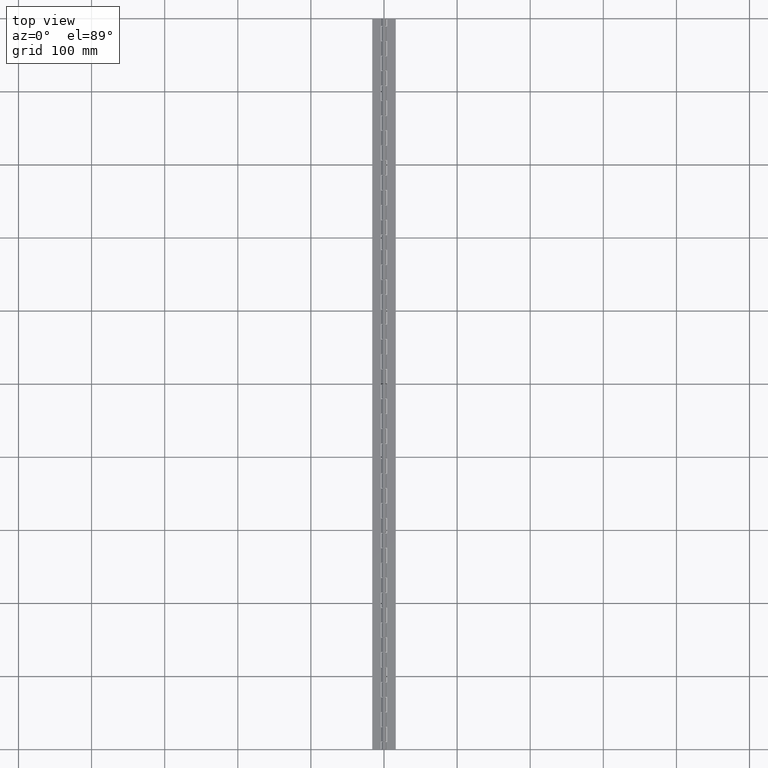
[diagram: clean part render]
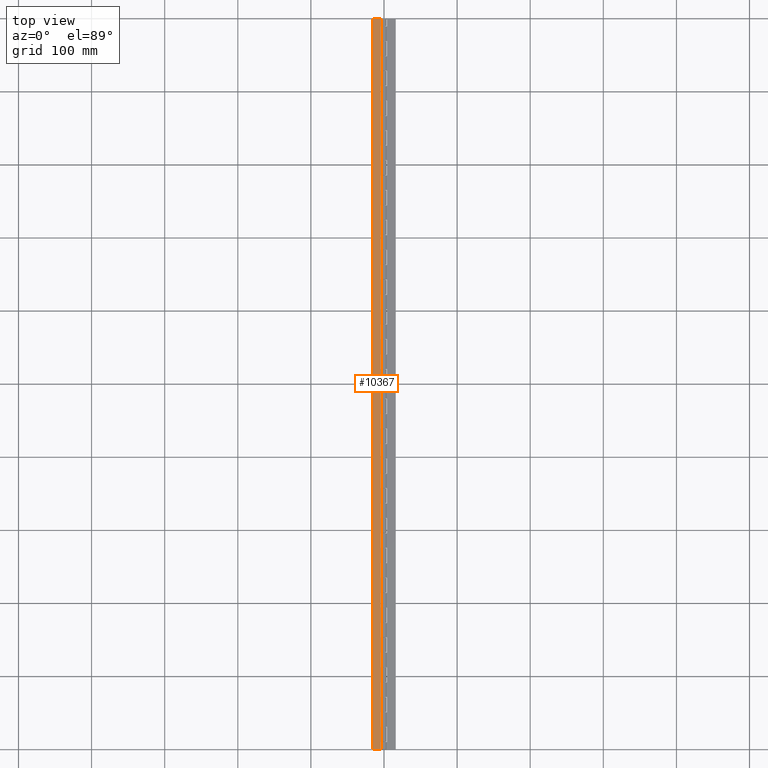
[diagram: same view with one face highlighted and labeled with its STEP entity id]
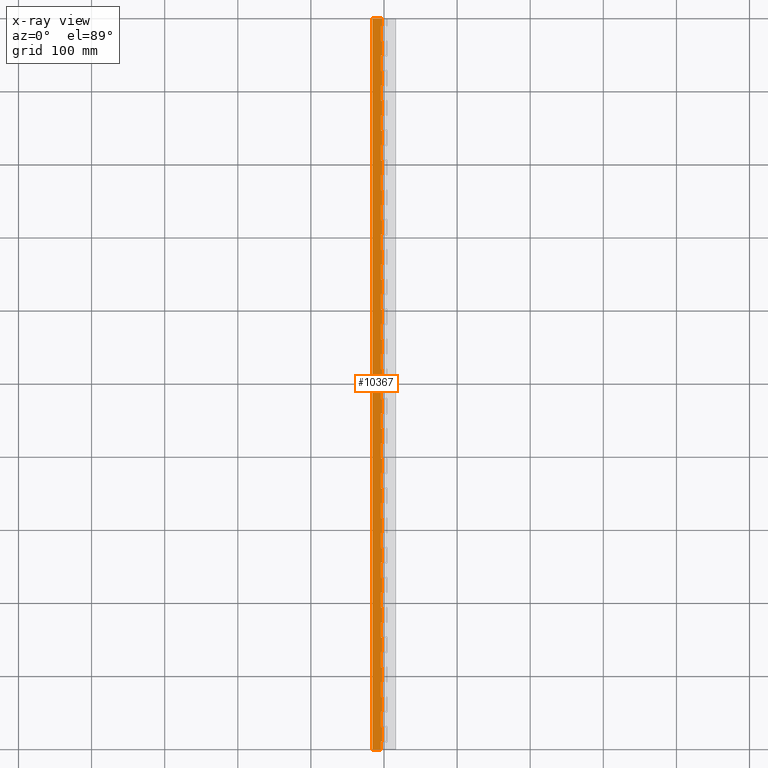
[diagram: x-ray of the same camera — body ghosted, the highlighted face saturated]
A machine part, top view. The second image highlights one B-rep face of the part: STEP entity #10367.
The next image is the same camera in x-ray: the body ghosted, the highlighted face saturated — about 0% of this face is hidden behind the body in this view.
In plain terms, the highlighted planar face has unit normal (0, 0, -1).
Its self-contained STEP definition (entity closure, byte-faithful):
#603 = VERTEX_POINT ( 'NONE', #3274 ) ;
#1460 = VERTEX_POINT ( 'NONE', #4622 ) ;
#2420 = ORIENTED_EDGE ( 'NONE', *, *, #9600, .T. ) ;
#2674 = VERTEX_POINT ( 'NONE', #6313 ) ;
#3274 = CARTESIAN_POINT ( 'NONE',  ( -2.872281323270664500, -40.60000000000108100, -1.999999999997704900 ) ) ;
#3474 = EDGE_CURVE ( 'NONE', #2674, #5263, #6295, .T. ) ;
#4622 = CARTESIAN_POINT ( 'NONE',  ( -2.872281323270664500, -163.0000000000012500, -1.999999999997704900 ) ) ;
#5263 = VERTEX_POINT ( 'NONE', #6374 ) ;
#5289 = VECTOR ( 'NONE', #5542, 1000.000000000000000 ) ;
#5367 = VERTEX_POINT ( 'NONE', #6363 ) ;
#5542 = DIRECTION ( 'NONE',  ( 2.085004177856735100E-016, 1.000000000000000000, 0.0000000000000000000 ) ) ;
#5788 = DIRECTION ( 'NONE',  ( 1.251002506714041300E-016, 1.000000000000000000, 0.0000000000000000000 ) ) ;
#5793 = VECTOR ( 'NONE', #5788, 1000.000000000000000 ) ;
#6053 = VECTOR ( 'NONE', #6323, 1000.000000000000000 ) ;
#6089 = EDGE_CURVE ( 'NONE', #6145, #10767, #6416, .T. ) ;
#6145 = VERTEX_POINT ( 'NONE', #6407 ) ;
#6289 = DIRECTION ( 'NONE',  ( 0.0000000000000000000, -1.000000000000000000, 0.0000000000000000000 ) ) ;
#6290 = VECTOR ( 'NONE', #6289, 1000.000000000000000 ) ;
#6291 = CARTESIAN_POINT ( 'NONE',  ( -2.872281323270664500, 500.0000000000000000, -1.999999999997704900 ) ) ;
#6295 = LINE ( 'NONE', #6291, #6290 ) ;
#6313 = CARTESIAN_POINT ( 'NONE',  ( -2.872281323270664500, -61.40000000000112100, -1.999999999997704900 ) ) ;
#6323 = DIRECTION ( 'NONE',  ( 0.0000000000000000000, 1.000000000000000000, 0.0000000000000000000 ) ) ;
#6363 = CARTESIAN_POINT ( 'NONE',  ( -2.872281323270664500, -20.60000000000106000, -1.999999999997704900 ) ) ;
#6374 = CARTESIAN_POINT ( 'NONE',  ( -2.872281323270664500, -81.40000000000114300, -1.999999999997704900 ) ) ;
#6407 = CARTESIAN_POINT ( 'NONE',  ( -2.872281323270664500, -102.2000000000011800, -1.999999999997704900 ) ) ;
#6413 = DIRECTION ( 'NONE',  ( 0.0000000000000000000, -1.000000000000000000, 0.0000000000000000000 ) ) ;
#6414 = VECTOR ( 'NONE', #6413, 1000.000000000000000 ) ;
#6415 = CARTESIAN_POINT ( 'NONE',  ( -2.872281323270664500, 500.0000000000000000, -1.999999999997704900 ) ) ;
#6416 = LINE ( 'NONE', #6415, #6414 ) ;
#6486 = CARTESIAN_POINT ( 'NONE',  ( -4.000000000001147500, 0.1999999999989787700, -1.999999999997704900 ) ) ;
#6487 = DIRECTION ( 'NONE',  ( 1.000000000000000000, 0.0000000000000000000, 0.0000000000000000000 ) ) ;
#6488 = VECTOR ( 'NONE', #6487, 1000.000000000000000 ) ;
#6489 = CARTESIAN_POINT ( 'NONE',  ( -2.872281323270664500, -40.60000000000108100, -1.999999999997704900 ) ) ;
#6490 = LINE ( 'NONE', #6489, #6488 ) ;
#6491 = CARTESIAN_POINT ( 'NONE',  ( -4.000000000001136900, 81.79999999999910200, -1.999999999997704900 ) ) ;
#6493 = CARTESIAN_POINT ( 'NONE',  ( -4.000000000001149300, -20.60000000000106000, -1.999999999997704900 ) ) ;
#6494 = DIRECTION ( 'NONE',  ( 1.251002506714041300E-016, 1.000000000000000000, 0.0000000000000000000 ) ) ;
#6495 = VECTOR ( 'NONE', #6494, 1000.000000000000000 ) ;
#6496 = CARTESIAN_POINT ( 'NONE',  ( -4.000000000001085400, 500.0000000000000000, -1.999999999997704900 ) ) ;
#6497 = LINE ( 'NONE', #6496, #6495 ) ;
#6498 = DIRECTION ( 'NONE',  ( 8.340016711426940500E-017, 1.000000000000000000, 0.0000000000000000000 ) ) ;
#6499 = VECTOR ( 'NONE', #6498, 1000.000000000000000 ) ;
#6500 = CARTESIAN_POINT ( 'NONE',  ( -4.000000000001106700, 500.0000000000000000, -1.999999999997704900 ) ) ;
#6501 = LINE ( 'NONE', #6500, #6499 ) ;
#6502 = DIRECTION ( 'NONE',  ( 1.000000000000000000, 0.0000000000000000000, 0.0000000000000000000 ) ) ;
#6503 = VECTOR ( 'NONE', #6502, 1000.000000000000000 ) ;
#6504 = CARTESIAN_POINT ( 'NONE',  ( -2.872281323270664500, 0.1999999999989787700, -1.999999999997704900 ) ) ;
#6505 = LINE ( 'NONE', #6504, #6503 ) ;
#6519 = CARTESIAN_POINT ( 'NONE',  ( -4.000000000001145800, 20.19999999999899700, -1.999999999997704900 ) ) ;
#6520 = CARTESIAN_POINT ( 'NONE',  ( -4.000000000001132400, 122.5999999999991600, -1.999999999997704900 ) ) ;
#6521 = DIRECTION ( 'NONE',  ( 1.000000000000000000, 0.0000000000000000000, 0.0000000000000000000 ) ) ;
#6522 = VECTOR ( 'NONE', #6521, 1000.000000000000000 ) ;
#6523 = CARTESIAN_POINT ( 'NONE',  ( -2.872281323270664500, 122.5999999999991600, -1.999999999997704900 ) ) ;
#6524 = LINE ( 'NONE', #6523, #6522 ) ;
#6525 = DIRECTION ( 'NONE',  ( -1.000000000000000000, 0.0000000000000000000, 0.0000000000000000000 ) ) ;
#6527 = VECTOR ( 'NONE', #6525, 1000.000000000000000 ) ;
#6528 = CARTESIAN_POINT ( 'NONE',  ( -2.872281323270664500, -20.60000000000106000, -1.999999999997704900 ) ) ;
#6529 = LINE ( 'NONE', #6528, #6527 ) ;
#6530 = CARTESIAN_POINT ( 'NONE',  ( -4.000000000001139500, 60.99999999999905500, -1.999999999997704900 ) ) ;
#6531 = DIRECTION ( 'NONE',  ( -1.000000000000000000, 0.0000000000000000000, 0.0000000000000000000 ) ) ;
#6532 = VECTOR ( 'NONE', #6531, 1000.000000000000000 ) ;
#6533 = CARTESIAN_POINT ( 'NONE',  ( -2.872281323270664500, 60.99999999999905500, -1.999999999997704900 ) ) ;
#6534 = LINE ( 'NONE', #6533, #6532 ) ;
#6535 = CARTESIAN_POINT ( 'NONE',  ( -4.000000000001142200, 40.99999999999903400, -1.999999999997704900 ) ) ;
#6536 = DIRECTION ( 'NONE',  ( 1.000000000000000000, 0.0000000000000000000, 0.0000000000000000000 ) ) ;
#6537 = VECTOR ( 'NONE', #6536, 1000.000000000000000 ) ;
#6538 = CARTESIAN_POINT ( 'NONE',  ( -2.872281323270664500, 40.99999999999903400, -1.999999999997704900 ) ) ;
#6539 = LINE ( 'NONE', #6538, #6537 ) ;
#6540 = DIRECTION ( 'NONE',  ( 1.668003342285388100E-016, 1.000000000000000000, 0.0000000000000000000 ) ) ;
#6541 = VECTOR ( 'NONE', #6540, 1000.000000000000000 ) ;
#6542 = CARTESIAN_POINT ( 'NONE',  ( -4.000000000001065800, 500.0000000000000000, -1.999999999997704900 ) ) ;
#6543 = LINE ( 'NONE', #6542, #6541 ) ;
#6548 = DIRECTION ( 'NONE',  ( 8.340016711426940500E-017, 1.000000000000000000, 0.0000000000000000000 ) ) ;
#6549 = VECTOR ( 'NONE', #6548, 1000.000000000000000 ) ;
#6550 = CARTESIAN_POINT ( 'NONE',  ( -4.000000000001111100, 500.0000000000000000, -1.999999999997704900 ) ) ;
#6551 = LINE ( 'NONE', #6550, #6549 ) ;
#6552 = CARTESIAN_POINT ( 'NONE',  ( -4.000000000001159100, -102.2000000000011800, -1.999999999997704900 ) ) ;
#6553 = DIRECTION ( 'NONE',  ( 8.340016711426940500E-017, 1.000000000000000000, 0.0000000000000000000 ) ) ;
#6554 = VECTOR ( 'NONE', #6553, 1000.000000000000000 ) ;
#6555 = CARTESIAN_POINT ( 'NONE',  ( -4.000000000001108400, 500.0000000000000000, -1.999999999997704900 ) ) ;
#6556 = LINE ( 'NONE', #6555, #6554 ) ;
#6557 = CARTESIAN_POINT ( 'NONE',  ( -4.000000000001152900, -40.60000000000108100, -1.999999999997704900 ) ) ;
#6558 = DIRECTION ( 'NONE',  ( -1.000000000000000000, 0.0000000000000000000, 0.0000000000000000000 ) ) ;
#6559 = VECTOR ( 'NONE', #6558, 1000.000000000000000 ) ;
#6560 = CARTESIAN_POINT ( 'NONE',  ( -2.872281323270664500, -102.2000000000011800, -1.999999999997704900 ) ) ;
#6561 = LINE ( 'NONE', #6560, #6559 ) ;
#6562 = CARTESIAN_POINT ( 'NONE',  ( -4.000000000001154600, -61.40000000000112100, -1.999999999997704900 ) ) ;
#6563 = DIRECTION ( 'NONE',  ( -1.000000000000000000, 0.0000000000000000000, 0.0000000000000000000 ) ) ;
#6564 = VECTOR ( 'NONE', #6563, 1000.000000000000000 ) ;
#6565 = CARTESIAN_POINT ( 'NONE',  ( -2.872281323270664500, -61.40000000000112100, -1.999999999997704900 ) ) ;
#6566 = LINE ( 'NONE', #6565, #6564 ) ;
#6567 = CARTESIAN_POINT ( 'NONE',  ( -4.000000000001157300, -81.40000000000114300, -1.999999999997704900 ) ) ;
#6568 = DIRECTION ( 'NONE',  ( 1.000000000000000000, 0.0000000000000000000, 0.0000000000000000000 ) ) ;
#6569 = VECTOR ( 'NONE', #6568, 1000.000000000000000 ) ;
#6570 = CARTESIAN_POINT ( 'NONE',  ( -2.872281323270664500, -163.0000000000012500, -1.999999999997704900 ) ) ;
#6571 = LINE ( 'NONE', #6570, #6569 ) ;
#6572 = DIRECTION ( 'NONE',  ( 1.251002506714041300E-016, 1.000000000000000000, 0.0000000000000000000 ) ) ;
#6573 = VECTOR ( 'NONE', #6572, 1000.000000000000000 ) ;
#6574 = CARTESIAN_POINT ( 'NONE',  ( -4.000000000001085400, 500.0000000000000000, -1.999999999997704900 ) ) ;
#6575 = LINE ( 'NONE', #6574, #6573 ) ;
#6580 = CARTESIAN_POINT ( 'NONE',  ( -4.000000000001059600, 500.0000000000000000, -1.999999999997704900 ) ) ;
#6581 = LINE ( 'NONE', #6580, #5289 ) ;
#6584 = DIRECTION ( 'NONE',  ( -1.000000000000000000, 0.0000000000000000000, 0.0000000000000000000 ) ) ;
#6585 = VECTOR ( 'NONE', #6584, 1000.000000000000000 ) ;
#6586 = CARTESIAN_POINT ( 'NONE',  ( -2.872281323270664500, 101.7999999999991200, -1.999999999997704900 ) ) ;
#6587 = LINE ( 'NONE', #6586, #6585 ) ;
#6588 = CARTESIAN_POINT ( 'NONE',  ( -4.000000000001121800, 204.1999999999992800, -1.999999999997704900 ) ) ;
#6589 = CARTESIAN_POINT ( 'NONE',  ( -4.000000000001134200, 101.7999999999991200, -1.999999999997704900 ) ) ;
#6590 = DIRECTION ( 'NONE',  ( -1.000000000000000000, 0.0000000000000000000, 0.0000000000000000000 ) ) ;
#6591 = VECTOR ( 'NONE', #6590, 1000.000000000000000 ) ;
#6592 = CARTESIAN_POINT ( 'NONE',  ( -2.872281323270664500, -143.0000000000012500, -1.999999999997704900 ) ) ;
#6593 = LINE ( 'NONE', #6592, #6591 ) ;
#6595 = DIRECTION ( 'NONE',  ( -1.000000000000000000, 0.0000000000000000000, 0.0000000000000000000 ) ) ;
#6596 = VECTOR ( 'NONE', #6595, 1000.000000000000000 ) ;
#6597 = CARTESIAN_POINT ( 'NONE',  ( -2.872281323270664500, 20.19999999999899700, -1.999999999997704900 ) ) ;
#6598 = LINE ( 'NONE', #6597, #6596 ) ;
#6600 = CARTESIAN_POINT ( 'NONE',  ( -4.000000000001164400, -143.0000000000012500, -1.999999999997704900 ) ) ;
#6606 = CARTESIAN_POINT ( 'NONE',  ( -4.000000000001162600, -122.2000000000012000, -1.999999999997704900 ) ) ;
#6607 = DIRECTION ( 'NONE',  ( 1.000000000000000000, 0.0000000000000000000, 0.0000000000000000000 ) ) ;
#6608 = VECTOR ( 'NONE', #6607, 1000.000000000000000 ) ;
#6609 = CARTESIAN_POINT ( 'NONE',  ( -2.872281323270664500, -81.40000000000114300, -1.999999999997704900 ) ) ;
#6611 = LINE ( 'NONE', #6609, #6608 ) ;
#6612 = DIRECTION ( 'NONE',  ( 8.340016711426940500E-017, 1.000000000000000000, 0.0000000000000000000 ) ) ;
#6613 = VECTOR ( 'NONE', #6612, 1000.000000000000000 ) ;
#6614 = CARTESIAN_POINT ( 'NONE',  ( -4.000000000001108400, 500.0000000000000000, -1.999999999997704900 ) ) ;
#6615 = LINE ( 'NONE', #6614, #6613 ) ;
#6616 = DIRECTION ( 'NONE',  ( 1.000000000000000000, 0.0000000000000000000, 0.0000000000000000000 ) ) ;
#6617 = VECTOR ( 'NONE', #6616, 1000.000000000000000 ) ;
#6618 = CARTESIAN_POINT ( 'NONE',  ( -2.872281323270664500, 244.9999999999993200, -1.999999999997704900 ) ) ;
#6619 = LINE ( 'NONE', #6618, #6617 ) ;
#6620 = CARTESIAN_POINT ( 'NONE',  ( -4.000000000001118200, 244.9999999999993200, -1.999999999997704900 ) ) ;
#6621 = DIRECTION ( 'NONE',  ( 1.251002506714041300E-016, 1.000000000000000000, 0.0000000000000000000 ) ) ;
#6622 = VECTOR ( 'NONE', #6621, 1000.000000000000000 ) ;
#6623 = CARTESIAN_POINT ( 'NONE',  ( -4.000000000001087100, 500.0000000000000000, -1.999999999997704900 ) ) ;
#6624 = LINE ( 'NONE', #6623, #6622 ) ;
#6625 = CARTESIAN_POINT ( 'NONE',  ( -4.000000000001120900, 224.1999999999992800, -1.999999999997704900 ) ) ;
#6626 = DIRECTION ( 'NONE',  ( 1.000000000000000000, 0.0000000000000000000, 0.0000000000000000000 ) ) ;
#6627 = VECTOR ( 'NONE', #6626, 1000.000000000000000 ) ;
#6628 = CARTESIAN_POINT ( 'NONE',  ( -2.872281323270664500, 285.7999999999993900, -1.999999999997704900 ) ) ;
#6629 = LINE ( 'NONE', #6628, #6627 ) ;
#6630 = DIRECTION ( 'NONE',  ( 1.000000000000000000, 0.0000000000000000000, 0.0000000000000000000 ) ) ;
#6631 = VECTOR ( 'NONE', #6630, 1000.000000000000000 ) ;
#6632 = CARTESIAN_POINT ( 'NONE',  ( -2.872281323270664500, 367.3999999999995200, -1.999999999997704900 ) ) ;
#6633 = LINE ( 'NONE', #6632, #6631 ) ;
#6634 = CARTESIAN_POINT ( 'NONE',  ( -4.000000000001096900, 367.3999999999995200, -1.999999999997704900 ) ) ;
#6635 = DIRECTION ( 'NONE',  ( -1.000000000000000000, 0.0000000000000000000, 0.0000000000000000000 ) ) ;
#6636 = VECTOR ( 'NONE', #6635, 1000.000000000000000 ) ;
#6637 = CARTESIAN_POINT ( 'NONE',  ( -2.872281323270664500, 264.9999999999993700, -1.999999999997704900 ) ) ;
#6638 = LINE ( 'NONE', #6637, #6636 ) ;
#6639 = CARTESIAN_POINT ( 'NONE',  ( -4.000000000001131500, 142.5999999999991700, -1.999999999997704900 ) ) ;
#6640 = DIRECTION ( 'NONE',  ( 1.000000000000000000, 0.0000000000000000000, 0.0000000000000000000 ) ) ;
#6641 = VECTOR ( 'NONE', #6640, 1000.000000000000000 ) ;
#6642 = CARTESIAN_POINT ( 'NONE',  ( -2.872281323270664500, 81.79999999999910200, -1.999999999997704900 ) ) ;
#6643 = LINE ( 'NONE', #6642, #6641 ) ;
#6644 = CARTESIAN_POINT ( 'NONE',  ( -4.000000000001126200, 183.3999999999992400, -1.999999999997704900 ) ) ;
#6645 = DIRECTION ( 'NONE',  ( -1.000000000000000000, 0.0000000000000000000, 0.0000000000000000000 ) ) ;
#6646 = VECTOR ( 'NONE', #6645, 1000.000000000000000 ) ;
#6647 = CARTESIAN_POINT ( 'NONE',  ( -2.872281323270664500, 183.3999999999992400, -1.999999999997704900 ) ) ;
#6648 = LINE ( 'NONE', #6647, #6646 ) ;
#6649 = CARTESIAN_POINT ( 'NONE',  ( -4.000000000001114700, 264.9999999999993700, -1.999999999997704900 ) ) ;
#6650 = CARTESIAN_POINT ( 'NONE',  ( -4.000000000001105800, 305.7999999999993900, -1.999999999997704900 ) ) ;
#6651 = DIRECTION ( 'NONE',  ( 1.251002506714041300E-016, 1.000000000000000000, 0.0000000000000000000 ) ) ;
#6652 = VECTOR ( 'NONE', #6651, 1000.000000000000000 ) ;
#6653 = CARTESIAN_POINT ( 'NONE',  ( -4.000000000001082700, 500.0000000000000000, -1.999999999997704900 ) ) ;
#6654 = LINE ( 'NONE', #6653, #6652 ) ;
#6655 = CARTESIAN_POINT ( 'NONE',  ( -4.000000000001103100, 326.5999999999994500, -1.999999999997704900 ) ) ;
#6656 = DIRECTION ( 'NONE',  ( 1.668003342285388100E-016, 1.000000000000000000, 0.0000000000000000000 ) ) ;
#6657 = VECTOR ( 'NONE', #6656, 1000.000000000000000 ) ;
#6658 = CARTESIAN_POINT ( 'NONE',  ( -4.000000000001072000, 500.0000000000000000, -1.999999999997704900 ) ) ;
#6659 = LINE ( 'NONE', #6658, #6657 ) ;
#6660 = DIRECTION ( 'NONE',  ( -1.000000000000000000, 0.0000000000000000000, 0.0000000000000000000 ) ) ;
#6661 = VECTOR ( 'NONE', #6660, 1000.000000000000000 ) ;
#6662 = CARTESIAN_POINT ( 'NONE',  ( -2.872281323270664500, 346.5999999999994500, -1.999999999997704900 ) ) ;
#6663 = LINE ( 'NONE', #6662, #6661 ) ;
#6664 = DIRECTION ( 'NONE',  ( -1.000000000000000000, 0.0000000000000000000, 0.0000000000000000000 ) ) ;
#6666 = VECTOR ( 'NONE', #6664, 1000.000000000000000 ) ;
#6667 = CARTESIAN_POINT ( 'NONE',  ( -2.872281323270664500, 224.1999999999992800, -1.999999999997704900 ) ) ;
#6668 = LINE ( 'NONE', #6667, #6666 ) ;
#6669 = CARTESIAN_POINT ( 'NONE',  ( -4.000000000001128000, 163.3999999999992100, -1.999999999997704900 ) ) ;
#6670 = DIRECTION ( 'NONE',  ( 1.000000000000000000, 0.0000000000000000000, 0.0000000000000000000 ) ) ;
#6671 = VECTOR ( 'NONE', #6670, 1000.000000000000000 ) ;
#6672 = CARTESIAN_POINT ( 'NONE',  ( -2.872281323270664500, 204.1999999999992800, -1.999999999997704900 ) ) ;
#6673 = LINE ( 'NONE', #6672, #6671 ) ;
#6674 = DIRECTION ( 'NONE',  ( -1.000000000000000000, 0.0000000000000000000, 0.0000000000000000000 ) ) ;
#6675 = VECTOR ( 'NONE', #6674, 1000.000000000000000 ) ;
#6676 = CARTESIAN_POINT ( 'NONE',  ( -2.872281323270664500, 142.5999999999991700, -1.999999999997704900 ) ) ;
#6677 = LINE ( 'NONE', #6676, #6675 ) ;
#6678 = DIRECTION ( 'NONE',  ( 1.000000000000000000, 0.0000000000000000000, 0.0000000000000000000 ) ) ;
#6679 = VECTOR ( 'NONE', #6678, 1000.000000000000000 ) ;
#6680 = CARTESIAN_POINT ( 'NONE',  ( -2.872281323270664500, 326.5999999999994500, -1.999999999997704900 ) ) ;
#6681 = LINE ( 'NONE', #6680, #6679 ) ;
#6686 = DIRECTION ( 'NONE',  ( 0.0000000000000000000, 1.000000000000000000, 0.0000000000000000000 ) ) ;
#6687 = VECTOR ( 'NONE', #6686, 1000.000000000000000 ) ;
#6688 = CARTESIAN_POINT ( 'NONE',  ( -4.000000000001115600, 500.0000000000000000, -1.999999999997704900 ) ) ;
#6689 = LINE ( 'NONE', #6688, #6687 ) ;
#6690 = DIRECTION ( 'NONE',  ( 1.251002506714041300E-016, 1.000000000000000000, 0.0000000000000000000 ) ) ;
#6691 = VECTOR ( 'NONE', #6690, 1000.000000000000000 ) ;
#6692 = CARTESIAN_POINT ( 'NONE',  ( -4.000000000001080900, 500.0000000000000000, -1.999999999997704900 ) ) ;
#6693 = LINE ( 'NONE', #6692, #6691 ) ;
#6694 = CARTESIAN_POINT ( 'NONE',  ( -4.000000000001114700, 285.7999999999993900, -1.999999999997704900 ) ) ;
#6701 = CARTESIAN_POINT ( 'NONE',  ( -4.000000000001099600, 346.5999999999994500, -1.999999999997704900 ) ) ;
#6702 = DIRECTION ( 'NONE',  ( -1.000000000000000000, 0.0000000000000000000, 0.0000000000000000000 ) ) ;
#6703 = VECTOR ( 'NONE', #6702, 1000.000000000000000 ) ;
#6704 = CARTESIAN_POINT ( 'NONE',  ( -2.872281323270664500, 305.7999999999993900, -1.999999999997704900 ) ) ;
#6705 = LINE ( 'NONE', #6704, #6703 ) ;
#6706 = DIRECTION ( 'NONE',  ( 1.000000000000000000, 0.0000000000000000000, 0.0000000000000000000 ) ) ;
#6707 = VECTOR ( 'NONE', #6706, 1000.000000000000000 ) ;
#6708 = CARTESIAN_POINT ( 'NONE',  ( -2.872281323270664500, 163.3999999999992100, -1.999999999997704900 ) ) ;
#6709 = LINE ( 'NONE', #6708, #6707 ) ;
#6710 = LINE ( 'NONE', #6774, #6773 ) ;
#6715 = DIRECTION ( 'NONE',  ( -1.000000000000000000, 0.0000000000000000000, 0.0000000000000000000 ) ) ;
#6716 = VECTOR ( 'NONE', #6715, 1000.000000000000000 ) ;
#6717 = CARTESIAN_POINT ( 'NONE',  ( -2.872281323270664500, 428.1999999999995900, -1.999999999997704900 ) ) ;
#6718 = LINE ( 'NONE', #6717, #6716 ) ;
#6719 = CARTESIAN_POINT ( 'NONE',  ( -4.000000000001096900, 428.1999999999995900, -1.999999999997704900 ) ) ;
#6727 = DIRECTION ( 'NONE',  ( 0.0000000000000000000, 1.000000000000000000, 0.0000000000000000000 ) ) ;
#6728 = VECTOR ( 'NONE', #6727, 1000.000000000000000 ) ;
#6729 = CARTESIAN_POINT ( 'NONE',  ( -4.000000000001097800, 500.0000000000000000, -1.999999999997704900 ) ) ;
#6730 = LINE ( 'NONE', #6729, #6728 ) ;
#6737 = CARTESIAN_POINT ( 'NONE',  ( -4.000000000001096900, 448.9999999999996000, -1.999999999997704900 ) ) ;
#6756 = CARTESIAN_POINT ( 'NONE',  ( -4.000000000001096000, 387.3999999999995200, -1.999999999997704900 ) ) ;
#6757 = DIRECTION ( 'NONE',  ( -1.000000000000000000, 0.0000000000000000000, 0.0000000000000000000 ) ) ;
#6758 = VECTOR ( 'NONE', #6757, 1000.000000000000000 ) ;
#6759 = CARTESIAN_POINT ( 'NONE',  ( -2.872281323270664500, 387.3999999999995200, -1.999999999997704900 ) ) ;
#6760 = LINE ( 'NONE', #6759, #6758 ) ;
#6765 = CARTESIAN_POINT ( 'NONE',  ( -4.000000000001093300, 408.1999999999995900, -1.999999999997704900 ) ) ;
#6767 = DIRECTION ( 'NONE',  ( 1.668003342285388100E-016, 1.000000000000000000, 0.0000000000000000000 ) ) ;
#6768 = VECTOR ( 'NONE', #6767, 1000.000000000000000 ) ;
#6769 = CARTESIAN_POINT ( 'NONE',  ( -4.000000000001078200, 500.0000000000000000, -1.999999999997704900 ) ) ;
#6770 = LINE ( 'NONE', #6769, #6768 ) ;
#6772 = DIRECTION ( 'NONE',  ( 1.000000000000000000, 0.0000000000000000000, 0.0000000000000000000 ) ) ;
#6773 = VECTOR ( 'NONE', #6772, 1000.000000000000000 ) ;
#6774 = CARTESIAN_POINT ( 'NONE',  ( -2.872281323270664500, 408.1999999999995900, -1.999999999997704900 ) ) ;
#6978 = VECTOR ( 'NONE', #7042, 1000.000000000000000 ) ;
#6979 = CARTESIAN_POINT ( 'NONE',  ( -2.872281323270664500, 448.9999999999996000, -1.999999999997704900 ) ) ;
#6980 = LINE ( 'NONE', #6979, #6978 ) ;
#7034 = DIRECTION ( 'NONE',  ( -1.000000000000000000, 0.0000000000000000000, 0.0000000000000000000 ) ) ;
#7035 = VECTOR ( 'NONE', #7034, 1000.000000000000000 ) ;
#7036 = CARTESIAN_POINT ( 'NONE',  ( -2.872281323270664500, 468.9999999999996600, -1.999999999997704900 ) ) ;
#7037 = LINE ( 'NONE', #7036, #7035 ) ;
#7042 = DIRECTION ( 'NONE',  ( 1.000000000000000000, 0.0000000000000000000, 0.0000000000000000000 ) ) ;
#7080 = CARTESIAN_POINT ( 'NONE',  ( -4.000000000001195500, -387.8000000000016000, -1.999999999997704900 ) ) ;
#7089 = CARTESIAN_POINT ( 'NONE',  ( -4.000000000001192800, -367.0000000000015300, -1.999999999997704900 ) ) ;
#7111 = CARTESIAN_POINT ( 'NONE',  ( -4.000000000001085400, 500.0000000000000000, -1.999999999997704900 ) ) ;
#7112 = LINE ( 'NONE', #7111, #5793 ) ;
#7114 = DIRECTION ( 'NONE',  ( -1.000000000000000000, 0.0000000000000000000, 0.0000000000000000000 ) ) ;
#7115 = VECTOR ( 'NONE', #7114, 1000.000000000000000 ) ;
#7116 = CARTESIAN_POINT ( 'NONE',  ( -2.872281323270664500, -265.4000000000014000, -1.999999999997704900 ) ) ;
#7117 = LINE ( 'NONE', #7116, #7115 ) ;
#7118 = DIRECTION ( 'NONE',  ( -1.000000000000000000, 0.0000000000000000000, 0.0000000000000000000 ) ) ;
#7119 = VECTOR ( 'NONE', #7118, 1000.000000000000000 ) ;
#7120 = CARTESIAN_POINT ( 'NONE',  ( -2.872281323270664500, -347.0000000000015300, -1.999999999997704900 ) ) ;
#7121 = LINE ( 'NONE', #7120, #7119 ) ;
#7122 = CARTESIAN_POINT ( 'NONE',  ( -4.000000000001187500, -326.2000000000014700, -1.999999999997704900 ) ) ;
#7123 = DIRECTION ( 'NONE',  ( 1.000000000000000000, 0.0000000000000000000, 0.0000000000000000000 ) ) ;
#7124 = VECTOR ( 'NONE', #7123, 1000.000000000000000 ) ;
#7125 = CARTESIAN_POINT ( 'NONE',  ( -2.872281323270664500, -367.0000000000015300, -1.999999999997704900 ) ) ;
#7126 = LINE ( 'NONE', #7125, #7124 ) ;
#7128 = CARTESIAN_POINT ( 'NONE',  ( -4.000000000001191000, -347.0000000000015300, -1.999999999997704900 ) ) ;
#7130 = CARTESIAN_POINT ( 'NONE',  ( -4.000000000001169700, -183.8000000000012900, -1.999999999997704900 ) ) ;
#7138 = CARTESIAN_POINT ( 'NONE',  ( -2.872281323270664500, 489.7999999999996700, -1.999999999997704900 ) ) ;
#7139 = DIRECTION ( 'NONE',  ( 1.251002506714041300E-016, 1.000000000000000000, 0.0000000000000000000 ) ) ;
#7140 = VECTOR ( 'NONE', #7139, 1000.000000000000000 ) ;
#7141 = CARTESIAN_POINT ( 'NONE',  ( -4.000000000001084500, 500.0000000000000000, -1.999999999997704900 ) ) ;
#7142 = LINE ( 'NONE', #7141, #7140 ) ;
#7145 = CARTESIAN_POINT ( 'NONE',  ( -4.000000000001168000, -163.0000000000012500, -1.999999999997704900 ) ) ;
#7146 = CARTESIAN_POINT ( 'NONE',  ( -4.000000000001180400, -265.4000000000014000, -1.999999999997704900 ) ) ;
#7147 = DIRECTION ( 'NONE',  ( 1.000000000000000000, 1.480297366166644800E-014, 0.0000000000000000000 ) ) ;
#7148 = VECTOR ( 'NONE', #7147, 1000.000000000000000 ) ;
#7149 = CARTESIAN_POINT ( 'NONE',  ( -2.872281323257226400, -407.8000000000017200, -1.999999999997704900 ) ) ;
#7150 = LINE ( 'NONE', #7149, #7148 ) ;
#7151 = DIRECTION ( 'NONE',  ( -1.000000000000000000, 0.0000000000000000000, 0.0000000000000000000 ) ) ;
#7152 = VECTOR ( 'NONE', #7151, 1000.000000000000000 ) ;
#7153 = CARTESIAN_POINT ( 'NONE',  ( -2.872281323270664500, -387.8000000000016000, -1.999999999997704900 ) ) ;
#7154 = LINE ( 'NONE', #7153, #7152 ) ;
#7155 = CARTESIAN_POINT ( 'NONE',  ( -4.000000000001185700, -306.2000000000014700, -1.999999999997704900 ) ) ;
#7156 = DIRECTION ( 'NONE',  ( 1.000000000000000000, 0.0000000000000000000, 0.0000000000000000000 ) ) ;
#7157 = VECTOR ( 'NONE', #7156, 1000.000000000000000 ) ;
#7158 = CARTESIAN_POINT ( 'NONE',  ( -2.872281323270664500, -244.6000000000013600, -1.999999999997704900 ) ) ;
#7159 = LINE ( 'NONE', #7158, #7157 ) ;
#7160 = DIRECTION ( 'NONE',  ( 1.251002506714041300E-016, 1.000000000000000000, 0.0000000000000000000 ) ) ;
#7161 = VECTOR ( 'NONE', #7160, 1000.000000000000000 ) ;
#7162 = CARTESIAN_POINT ( 'NONE',  ( -4.000000000001085400, 500.0000000000000000, -1.999999999997704900 ) ) ;
#7163 = LINE ( 'NONE', #7162, #7161 ) ;
#7164 = CARTESIAN_POINT ( 'NONE',  ( -4.000000000001175100, -224.6000000000013600, -1.999999999997704900 ) ) ;
#7165 = CARTESIAN_POINT ( 'NONE',  ( -4.000000000001177700, -244.6000000000013600, -1.999999999997704900 ) ) ;
#7166 = DIRECTION ( 'NONE',  ( 1.000000000000000000, 0.0000000000000000000, 0.0000000000000000000 ) ) ;
#7167 = VECTOR ( 'NONE', #7166, 1000.000000000000000 ) ;
#7168 = CARTESIAN_POINT ( 'NONE',  ( -2.872281323270664500, -285.4000000000014600, -1.999999999997704900 ) ) ;
#7169 = LINE ( 'NONE', #7168, #7167 ) ;
#7170 = DIRECTION ( 'NONE',  ( -1.000000000000000000, 0.0000000000000000000, 0.0000000000000000000 ) ) ;
#7171 = VECTOR ( 'NONE', #7170, 1000.000000000000000 ) ;
#7172 = CARTESIAN_POINT ( 'NONE',  ( -2.872281323270664500, -224.6000000000013600, -1.999999999997704900 ) ) ;
#7173 = LINE ( 'NONE', #7172, #7171 ) ;
#7190 = DIRECTION ( 'NONE',  ( -1.000000000000000000, 0.0000000000000000000, 0.0000000000000000000 ) ) ;
#7191 = VECTOR ( 'NONE', #7190, 1000.000000000000000 ) ;
#7192 = CARTESIAN_POINT ( 'NONE',  ( -2.872281323270664500, -306.2000000000014700, -1.999999999997704900 ) ) ;
#7193 = LINE ( 'NONE', #7192, #7191 ) ;
#7194 = DIRECTION ( 'NONE',  ( 1.000000000000000000, 0.0000000000000000000, 0.0000000000000000000 ) ) ;
#7195 = VECTOR ( 'NONE', #7194, 1000.000000000000000 ) ;
#7196 = CARTESIAN_POINT ( 'NONE',  ( -2.872281323270664500, -326.2000000000014700, -1.999999999997704900 ) ) ;
#7197 = LINE ( 'NONE', #7196, #7195 ) ;
#7202 = CARTESIAN_POINT ( 'NONE',  ( -4.000000000001183100, -285.4000000000014600, -1.999999999997704900 ) ) ;
#7203 = DIRECTION ( 'NONE',  ( 1.668003342285388100E-016, 1.000000000000000000, 0.0000000000000000000 ) ) ;
#7204 = VECTOR ( 'NONE', #7203, 1000.000000000000000 ) ;
#7205 = CARTESIAN_POINT ( 'NONE',  ( -4.000000000001049800, 500.0000000000000000, -1.999999999997704900 ) ) ;
#7206 = LINE ( 'NONE', #7205, #7204 ) ;
#7212 = DIRECTION ( 'NONE',  ( 1.251002506714041300E-016, 1.000000000000000000, 0.0000000000000000000 ) ) ;
#7213 = VECTOR ( 'NONE', #7212, 1000.000000000000000 ) ;
#7214 = CARTESIAN_POINT ( 'NONE',  ( -4.000000000001085400, 500.0000000000000000, -1.999999999997704900 ) ) ;
#7215 = LINE ( 'NONE', #7214, #7213 ) ;
#7221 = DIRECTION ( 'NONE',  ( 0.0000000000000000000, -1.000000000000000000, 0.0000000000000000000 ) ) ;
#7222 = VECTOR ( 'NONE', #7221, 1000.000000000000000 ) ;
#7223 = CARTESIAN_POINT ( 'NONE',  ( -2.872281323270664500, 500.0000000000000000, -1.999999999997704900 ) ) ;
#7224 = LINE ( 'NONE', #7223, #7222 ) ;
#7226 = CARTESIAN_POINT ( 'NONE',  ( -2.872281323270664500, 500.0000000000000000, -1.999999999997704900 ) ) ;
#7232 = CARTESIAN_POINT ( 'NONE',  ( -4.000000000001172400, -203.8000000000013200, -1.999999999997704900 ) ) ;
#7240 = DIRECTION ( 'NONE',  ( -1.000000000000000000, 0.0000000000000000000, 0.0000000000000000000 ) ) ;
#7241 = VECTOR ( 'NONE', #7240, 1000.000000000000000 ) ;
#7242 = CARTESIAN_POINT ( 'NONE',  ( -2.872281323270664500, -183.8000000000012900, -1.999999999997704900 ) ) ;
#7243 = LINE ( 'NONE', #7242, #7241 ) ;
#7252 = DIRECTION ( 'NONE',  ( 1.000000000000000000, 0.0000000000000000000, 0.0000000000000000000 ) ) ;
#7253 = VECTOR ( 'NONE', #7252, 1000.000000000000000 ) ;
#7254 = CARTESIAN_POINT ( 'NONE',  ( -2.872281323270664500, -203.8000000000013200, -1.999999999997704900 ) ) ;
#7255 = LINE ( 'NONE', #7254, #7253 ) ;
#7269 = DIRECTION ( 'NONE',  ( 1.000000000000000000, 0.0000000000000000000, 0.0000000000000000000 ) ) ;
#7270 = VECTOR ( 'NONE', #7269, 1000.000000000000000 ) ;
#7271 = CARTESIAN_POINT ( 'NONE',  ( -2.872281323270664500, -122.2000000000012000, -1.999999999997704900 ) ) ;
#7272 = LINE ( 'NONE', #7271, #7270 ) ;
#7281 = DIRECTION ( 'NONE',  ( 1.251002506714041300E-016, 1.000000000000000000, 0.0000000000000000000 ) ) ;
#7282 = VECTOR ( 'NONE', #7281, 1000.000000000000000 ) ;
#7283 = CARTESIAN_POINT ( 'NONE',  ( -4.000000000001085400, 500.0000000000000000, -1.999999999997704900 ) ) ;
#7284 = LINE ( 'NONE', #7283, #7282 ) ;
#7285 = CARTESIAN_POINT ( 'NONE',  ( -2.872281323270664500, 468.9999999999996600, -1.999999999997704900 ) ) ;
#7322 = CARTESIAN_POINT ( 'NONE',  ( -2.872281323270664500, 408.1999999999995900, -1.999999999997704900 ) ) ;
#7338 = CARTESIAN_POINT ( 'NONE',  ( -2.872281323270664500, 448.9999999999996000, -1.999999999997704900 ) ) ;
#7357 = DIRECTION ( 'NONE',  ( 0.0000000000000000000, -1.000000000000000000, 0.0000000000000000000 ) ) ;
#7358 = VECTOR ( 'NONE', #7357, 1000.000000000000000 ) ;
#7359 = CARTESIAN_POINT ( 'NONE',  ( -2.872281323270664500, 500.0000000000000000, -1.999999999997704900 ) ) ;
#7364 = LINE ( 'NONE', #7359, #7358 ) ;
#7384 = CARTESIAN_POINT ( 'NONE',  ( -2.872281323270664500, 428.1999999999995900, -1.999999999997704900 ) ) ;
#7463 = LINE ( 'NONE', #7469, #7527 ) ;
#7469 = CARTESIAN_POINT ( 'NONE',  ( -2.872281323270664500, 500.0000000000000000, -1.999999999997704900 ) ) ;
#7526 = DIRECTION ( 'NONE',  ( 0.0000000000000000000, -1.000000000000000000, 0.0000000000000000000 ) ) ;
#7527 = VECTOR ( 'NONE', #7526, 1000.000000000000000 ) ;
#7528 = CARTESIAN_POINT ( 'NONE',  ( -2.872281323270664500, -347.0000000000015300, -1.999999999997704900 ) ) ;
#7561 = CARTESIAN_POINT ( 'NONE',  ( -2.872281323270664500, 264.9999999999993700, -1.999999999997704900 ) ) ;
#7574 = CARTESIAN_POINT ( 'NONE',  ( -2.872281323270664500, 204.1999999999992800, -1.999999999997704900 ) ) ;
#7587 = CARTESIAN_POINT ( 'NONE',  ( -2.872281323270664500, 305.7999999999993900, -1.999999999997704900 ) ) ;
#7599 = CARTESIAN_POINT ( 'NONE',  ( -2.872281323270664500, -367.0000000000015300, -1.999999999997704900 ) ) ;
#7601 = CARTESIAN_POINT ( 'NONE',  ( -2.872281323270664500, 163.3999999999992100, -1.999999999997704900 ) ) ;
#7621 = DIRECTION ( 'NONE',  ( 0.0000000000000000000, -1.000000000000000000, 0.0000000000000000000 ) ) ;
#7622 = VECTOR ( 'NONE', #7621, 1000.000000000000000 ) ;
#7623 = CARTESIAN_POINT ( 'NONE',  ( -2.872281323270664500, 500.0000000000000000, -1.999999999997704900 ) ) ;
#7624 = LINE ( 'NONE', #7623, #7622 ) ;
#7639 = CARTESIAN_POINT ( 'NONE',  ( -2.872281323270664500, 387.3999999999995200, -1.999999999997704900 ) ) ;
#7652 = CARTESIAN_POINT ( 'NONE',  ( -2.872281323270664500, 224.1999999999992800, -1.999999999997704900 ) ) ;
#7660 = DIRECTION ( 'NONE',  ( 0.0000000000000000000, -1.000000000000000000, 0.0000000000000000000 ) ) ;
#7661 = VECTOR ( 'NONE', #7660, 1000.000000000000000 ) ;
#7662 = CARTESIAN_POINT ( 'NONE',  ( -2.872281323270664500, 500.0000000000000000, -1.999999999997704900 ) ) ;
#7663 = LINE ( 'NONE', #7662, #7661 ) ;
#7696 = CARTESIAN_POINT ( 'NONE',  ( -2.872281323270664500, -306.2000000000014700, -1.999999999997704900 ) ) ;
#7708 = CARTESIAN_POINT ( 'NONE',  ( -2.872281323270664500, 367.3999999999995200, -1.999999999997704900 ) ) ;
#7709 = CARTESIAN_POINT ( 'NONE',  ( -2.872281323270664500, 285.7999999999993900, -1.999999999997704900 ) ) ;
#7743 = DIRECTION ( 'NONE',  ( 0.0000000000000000000, -1.000000000000000000, 0.0000000000000000000 ) ) ;
#7744 = VECTOR ( 'NONE', #7743, 1000.000000000000000 ) ;
#7745 = CARTESIAN_POINT ( 'NONE',  ( -2.872281323270664500, 500.0000000000000000, -1.999999999997704900 ) ) ;
#7746 = LINE ( 'NONE', #7745, #7744 ) ;
#7750 = LINE ( 'NONE', #7754, #7812 ) ;
#7754 = CARTESIAN_POINT ( 'NONE',  ( -2.872281323270664500, 500.0000000000000000, -1.999999999997704900 ) ) ;
#7769 = CARTESIAN_POINT ( 'NONE',  ( -2.872281323270664500, 326.5999999999994500, -1.999999999997704900 ) ) ;
#7770 = DIRECTION ( 'NONE',  ( 0.0000000000000000000, -1.000000000000000000, 0.0000000000000000000 ) ) ;
#7771 = VECTOR ( 'NONE', #7770, 1000.000000000000000 ) ;
#7772 = CARTESIAN_POINT ( 'NONE',  ( -2.872281323270664500, 500.0000000000000000, -1.999999999997704900 ) ) ;
#7773 = LINE ( 'NONE', #7772, #7771 ) ;
#7783 = LINE ( 'NONE', #7843, #7842 ) ;
#7809 = CARTESIAN_POINT ( 'NONE',  ( -2.872281323270664500, -387.8000000000016000, -1.999999999997704900 ) ) ;
#7811 = DIRECTION ( 'NONE',  ( 0.0000000000000000000, -1.000000000000000000, 0.0000000000000000000 ) ) ;
#7812 = VECTOR ( 'NONE', #7811, 1000.000000000000000 ) ;
#7820 = CARTESIAN_POINT ( 'NONE',  ( -16.00000000000001400, -500.0000000000000000, -1.999999999997704900 ) ) ;
#7831 = DIRECTION ( 'NONE',  ( 0.0000000000000000000, -1.000000000000000000, 0.0000000000000000000 ) ) ;
#7832 = VECTOR ( 'NONE', #7831, 1000.000000000000000 ) ;
#7833 = CARTESIAN_POINT ( 'NONE',  ( -16.00000000000001400, 500.0000000000000000, -1.999999999997704900 ) ) ;
#7834 = LINE ( 'NONE', #7833, #7832 ) ;
#7841 = DIRECTION ( 'NONE',  ( 0.0000000000000000000, -1.000000000000000000, 0.0000000000000000000 ) ) ;
#7842 = VECTOR ( 'NONE', #7841, 1000.000000000000000 ) ;
#7843 = CARTESIAN_POINT ( 'NONE',  ( -2.872281323270664500, 500.0000000000000000, -1.999999999997704900 ) ) ;
#7844 = CARTESIAN_POINT ( 'NONE',  ( -2.872281323270664500, -500.0000000000000000, -1.999999999997704900 ) ) ;
#7845 = LINE ( 'NONE', #7844, #7909 ) ;
#7846 = CARTESIAN_POINT ( 'NONE',  ( -2.872281323270664500, 346.5999999999994500, -1.999999999997704900 ) ) ;
#7877 = CARTESIAN_POINT ( 'NONE',  ( -4.000000000000653700, 500.0000000000000000, -1.999999999997704900 ) ) ;
#7878 = LINE ( 'NONE', #7877, #6053 ) ;
#7880 = CARTESIAN_POINT ( 'NONE',  ( -4.000000000000652800, 468.9999999999996600, -1.999999999997704900 ) ) ;
#7882 = CARTESIAN_POINT ( 'NONE',  ( -4.000000000000652800, 489.7999999999996700, -1.999999999997704900 ) ) ;
#7894 = CARTESIAN_POINT ( 'NONE',  ( -4.000000000001207900, -500.0000000000000000, -1.999999999997704900 ) ) ;
#7900 = DIRECTION ( 'NONE',  ( 1.000000000000000000, 0.0000000000000000000, 0.0000000000000000000 ) ) ;
#7901 = VECTOR ( 'NONE', #7900, 1000.000000000000000 ) ;
#7902 = CARTESIAN_POINT ( 'NONE',  ( -2.872281323270664500, 489.7999999999996700, -1.999999999997704900 ) ) ;
#7903 = LINE ( 'NONE', #7902, #7901 ) ;
#7908 = DIRECTION ( 'NONE',  ( 1.000000000000000000, 0.0000000000000000000, 0.0000000000000000000 ) ) ;
#7909 = VECTOR ( 'NONE', #7908, 1000.000000000000000 ) ;
#7934 = DIRECTION ( 'NONE',  ( -1.000000000000000000, 0.0000000000000000000, 0.0000000000000000000 ) ) ;
#7935 = DIRECTION ( 'NONE',  ( 0.0000000000000000000, 0.0000000000000000000, -1.000000000000000000 ) ) ;
#7936 = CARTESIAN_POINT ( 'NONE',  ( -2.872281323270664500, 500.0000000000000000, -1.999999999997704900 ) ) ;
#7937 = AXIS2_PLACEMENT_3D ( 'NONE', #7936, #7935, #7934 ) ;
#7938 = PLANE ( 'NONE',  #7937 ) ;
#7939 = FACE_OUTER_BOUND ( 'NONE', #10364, .T. ) ;
#7943 = DIRECTION ( 'NONE',  ( -1.000000000000000000, 0.0000000000000000000, 0.0000000000000000000 ) ) ;
#7944 = VECTOR ( 'NONE', #7943, 1000.000000000000000 ) ;
#7945 = CARTESIAN_POINT ( 'NONE',  ( -2.872281323270664500, -469.4000000000016800, -1.999999999997704900 ) ) ;
#7946 = LINE ( 'NONE', #7945, #7944 ) ;
#7947 = DIRECTION ( 'NONE',  ( 0.0000000000000000000, -1.000000000000000000, 0.0000000000000000000 ) ) ;
#7948 = VECTOR ( 'NONE', #7947, 1000.000000000000000 ) ;
#7949 = CARTESIAN_POINT ( 'NONE',  ( -2.872281323270664500, 500.0000000000000000, -1.999999999997704900 ) ) ;
#7950 = LINE ( 'NONE', #7949, #7948 ) ;
#7963 = CARTESIAN_POINT ( 'NONE',  ( -4.000000000001207900, -489.4000000000017400, -1.999999999997704900 ) ) ;
#7964 = CARTESIAN_POINT ( 'NONE',  ( -2.872281323270664500, -489.4000000000017400, -1.999999999997704900 ) ) ;
#7965 = CARTESIAN_POINT ( 'NONE',  ( -4.000000000001206100, -469.4000000000016800, -1.999999999997704900 ) ) ;
#7966 = CARTESIAN_POINT ( 'NONE',  ( -2.872281323270664500, 244.9999999999993200, -1.999999999997704900 ) ) ;
#7976 = CARTESIAN_POINT ( 'NONE',  ( -2.872281323270664500, 122.5999999999991600, -1.999999999997704900 ) ) ;
#7977 = DIRECTION ( 'NONE',  ( 0.0000000000000000000, 1.000000000000000000, 0.0000000000000000000 ) ) ;
#7978 = VECTOR ( 'NONE', #7977, 1000.000000000000000 ) ;
#7979 = CARTESIAN_POINT ( 'NONE',  ( -4.000000000001208800, 500.0000000000000000, -1.999999999997704900 ) ) ;
#7980 = LINE ( 'NONE', #7979, #7978 ) ;
#7996 = DIRECTION ( 'NONE',  ( 1.000000000000000000, 0.0000000000000000000, 0.0000000000000000000 ) ) ;
#7997 = VECTOR ( 'NONE', #7996, 1000.000000000000000 ) ;
#7998 = CARTESIAN_POINT ( 'NONE',  ( -2.872281323270664500, -489.4000000000017400, -1.999999999997704900 ) ) ;
#7999 = LINE ( 'NONE', #7998, #7997 ) ;
#8000 = CARTESIAN_POINT ( 'NONE',  ( -2.872281323270664500, -469.4000000000016800, -1.999999999997704900 ) ) ;
#8039 = DIRECTION ( 'NONE',  ( 0.0000000000000000000, -1.000000000000000000, 0.0000000000000000000 ) ) ;
#8040 = VECTOR ( 'NONE', #8039, 1000.000000000000000 ) ;
#8041 = CARTESIAN_POINT ( 'NONE',  ( -2.872281323270664500, 500.0000000000000000, -1.999999999997704900 ) ) ;
#8042 = LINE ( 'NONE', #8041, #8040 ) ;
#8043 = DIRECTION ( 'NONE',  ( 1.000000000000000000, 0.0000000000000000000, 0.0000000000000000000 ) ) ;
#8044 = VECTOR ( 'NONE', #8043, 1000.000000000000000 ) ;
#8045 = CARTESIAN_POINT ( 'NONE',  ( -2.872281323270664500, 500.0000000000000000, -1.999999999997704900 ) ) ;
#8046 = LINE ( 'NONE', #8045, #8044 ) ;
#8053 = DIRECTION ( 'NONE',  ( 1.251002506714041300E-016, 1.000000000000000000, 0.0000000000000000000 ) ) ;
#8054 = VECTOR ( 'NONE', #8053, 1000.000000000000000 ) ;
#8055 = CARTESIAN_POINT ( 'NONE',  ( -4.000000000001084500, 500.0000000000000000, -1.999999999997704900 ) ) ;
#8056 = LINE ( 'NONE', #8055, #8054 ) ;
#8057 = CARTESIAN_POINT ( 'NONE',  ( -4.000000000001198200, -407.8000000000017200, -1.999999999997704900 ) ) ;
#8062 = CARTESIAN_POINT ( 'NONE',  ( -4.000000000001200800, -428.6000000000017800, -1.999999999997704900 ) ) ;
#8063 = DIRECTION ( 'NONE',  ( -1.000000000000000000, 0.0000000000000000000, 0.0000000000000000000 ) ) ;
#8064 = VECTOR ( 'NONE', #8063, 1000.000000000000000 ) ;
#8065 = CARTESIAN_POINT ( 'NONE',  ( -2.872281323270664500, -428.6000000000017800, -1.999999999997704900 ) ) ;
#8066 = LINE ( 'NONE', #8065, #8064 ) ;
#8068 = LINE ( 'NONE', #8133, #8132 ) ;
#8110 = DIRECTION ( 'NONE',  ( 1.251002506714041300E-016, 1.000000000000000000, 0.0000000000000000000 ) ) ;
#8111 = VECTOR ( 'NONE', #8110, 1000.000000000000000 ) ;
#8112 = CARTESIAN_POINT ( 'NONE',  ( -4.000000000001085400, 500.0000000000000000, -1.999999999997704900 ) ) ;
#8119 = LINE ( 'NONE', #8112, #8111 ) ;
#8120 = CARTESIAN_POINT ( 'NONE',  ( -4.000000000001203500, -448.6000000000016700, -1.999999999997704900 ) ) ;
#8121 = CARTESIAN_POINT ( 'NONE',  ( -2.872281323270664500, 183.3999999999992400, -1.999999999997704900 ) ) ;
#8127 = DIRECTION ( 'NONE',  ( 0.0000000000000000000, -1.000000000000000000, 0.0000000000000000000 ) ) ;
#8128 = VECTOR ( 'NONE', #8127, 1000.000000000000000 ) ;
#8129 = CARTESIAN_POINT ( 'NONE',  ( -2.872281323270664500, 500.0000000000000000, -1.999999999997704900 ) ) ;
#8130 = LINE ( 'NONE', #8129, #8128 ) ;
#8131 = DIRECTION ( 'NONE',  ( 1.000000000000000000, 0.0000000000000000000, 0.0000000000000000000 ) ) ;
#8132 = VECTOR ( 'NONE', #8131, 1000.000000000000000 ) ;
#8133 = CARTESIAN_POINT ( 'NONE',  ( -2.872281323270664500, -448.6000000000016700, -1.999999999997704900 ) ) ;
#8164 = CARTESIAN_POINT ( 'NONE',  ( -2.872281323270664500, 101.7999999999991200, -1.999999999997704900 ) ) ;
#8229 = CARTESIAN_POINT ( 'NONE',  ( -2.872281323270664500, 81.79999999999910200, -1.999999999997704900 ) ) ;
#8258 = DIRECTION ( 'NONE',  ( 0.0000000000000000000, -1.000000000000000000, 0.0000000000000000000 ) ) ;
#8259 = VECTOR ( 'NONE', #8258, 1000.000000000000000 ) ;
#8260 = CARTESIAN_POINT ( 'NONE',  ( -2.872281323270664500, 500.0000000000000000, -1.999999999997704900 ) ) ;
#8261 = LINE ( 'NONE', #8260, #8259 ) ;
#8287 = CARTESIAN_POINT ( 'NONE',  ( -2.872281323270664500, 142.5999999999991700, -1.999999999997704900 ) ) ;
#8399 = CARTESIAN_POINT ( 'NONE',  ( -2.872281323270664500, 40.99999999999903400, -1.999999999997704900 ) ) ;
#8438 = DIRECTION ( 'NONE',  ( 0.0000000000000000000, -1.000000000000000000, 0.0000000000000000000 ) ) ;
#8439 = VECTOR ( 'NONE', #8438, 1000.000000000000000 ) ;
#8440 = CARTESIAN_POINT ( 'NONE',  ( -2.872281323270664500, 500.0000000000000000, -1.999999999997704900 ) ) ;
#8441 = LINE ( 'NONE', #8440, #8439 ) ;
#8442 = DIRECTION ( 'NONE',  ( 0.0000000000000000000, -1.000000000000000000, 0.0000000000000000000 ) ) ;
#8443 = VECTOR ( 'NONE', #8442, 1000.000000000000000 ) ;
#8444 = CARTESIAN_POINT ( 'NONE',  ( -2.872281323270664500, 500.0000000000000000, -1.999999999997704900 ) ) ;
#8445 = LINE ( 'NONE', #8444, #8443 ) ;
#8446 = CARTESIAN_POINT ( 'NONE',  ( -2.872281323270664500, 20.19999999999899700, -1.999999999997704900 ) ) ;
#8489 = CARTESIAN_POINT ( 'NONE',  ( -2.872281323270664500, 0.1999999999989787700, -1.999999999997704900 ) ) ;
#8499 = CARTESIAN_POINT ( 'NONE',  ( -2.872281323270664500, 60.99999999999905500, -1.999999999997704900 ) ) ;
#8502 = DIRECTION ( 'NONE',  ( 0.0000000000000000000, -1.000000000000000000, 0.0000000000000000000 ) ) ;
#8503 = VECTOR ( 'NONE', #8502, 1000.000000000000000 ) ;
#8504 = CARTESIAN_POINT ( 'NONE',  ( -2.872281323270664500, 500.0000000000000000, -1.999999999997704900 ) ) ;
#8509 = LINE ( 'NONE', #8504, #8503 ) ;
#8512 = DIRECTION ( 'NONE',  ( 0.0000000000000000000, -1.000000000000000000, 0.0000000000000000000 ) ) ;
#8513 = VECTOR ( 'NONE', #8512, 1000.000000000000000 ) ;
#8514 = CARTESIAN_POINT ( 'NONE',  ( -2.872281323270664500, 500.0000000000000000, -1.999999999997704900 ) ) ;
#8515 = LINE ( 'NONE', #8514, #8513 ) ;
#8561 = CARTESIAN_POINT ( 'NONE',  ( -2.872281323270664500, -143.0000000000012500, -1.999999999997704900 ) ) ;
#8562 = DIRECTION ( 'NONE',  ( 0.0000000000000000000, -1.000000000000000000, 0.0000000000000000000 ) ) ;
#8563 = VECTOR ( 'NONE', #8562, 1000.000000000000000 ) ;
#8564 = CARTESIAN_POINT ( 'NONE',  ( -2.872281323270664500, 500.0000000000000000, -1.999999999997704900 ) ) ;
#8569 = LINE ( 'NONE', #8564, #8563 ) ;
#8572 = CARTESIAN_POINT ( 'NONE',  ( -2.872281323270664500, -203.8000000000013200, -1.999999999997704900 ) ) ;
#8579 = CARTESIAN_POINT ( 'NONE',  ( -2.872281323270664500, -122.2000000000012000, -1.999999999997704900 ) ) ;
#8590 = DIRECTION ( 'NONE',  ( 0.0000000000000000000, -1.000000000000000000, 0.0000000000000000000 ) ) ;
#8591 = VECTOR ( 'NONE', #8590, 1000.000000000000000 ) ;
#8592 = CARTESIAN_POINT ( 'NONE',  ( -2.872281323270664500, 500.0000000000000000, -1.999999999997704900 ) ) ;
#8593 = LINE ( 'NONE', #8592, #8591 ) ;
#8608 = CARTESIAN_POINT ( 'NONE',  ( -2.872281323270664500, -244.6000000000013600, -1.999999999997704900 ) ) ;
#8620 = CARTESIAN_POINT ( 'NONE',  ( -2.872281323270664500, -265.4000000000014000, -1.999999999997704900 ) ) ;
#8643 = CARTESIAN_POINT ( 'NONE',  ( -2.872281323270664500, -183.8000000000012900, -1.999999999997704900 ) ) ;
#8659 = CARTESIAN_POINT ( 'NONE',  ( -2.872281323270664500, -285.4000000000014600, -1.999999999997704900 ) ) ;
#8695 = DIRECTION ( 'NONE',  ( 0.0000000000000000000, -1.000000000000000000, 0.0000000000000000000 ) ) ;
#8696 = VECTOR ( 'NONE', #8695, 1000.000000000000000 ) ;
#8697 = CARTESIAN_POINT ( 'NONE',  ( -2.872281323270664500, 500.0000000000000000, -1.999999999997704900 ) ) ;
#8698 = LINE ( 'NONE', #8697, #8696 ) ;
#8699 = CARTESIAN_POINT ( 'NONE',  ( -2.872281323270664500, -224.6000000000013600, -1.999999999997704900 ) ) ;
#8728 = CARTESIAN_POINT ( 'NONE',  ( -2.872281323270664500, -326.2000000000014700, -1.999999999997704900 ) ) ;
#8812 = CARTESIAN_POINT ( 'NONE',  ( -2.872281323270664500, -428.6000000000017800, -1.999999999997704900 ) ) ;
#8824 = DIRECTION ( 'NONE',  ( 0.0000000000000000000, -1.000000000000000000, 0.0000000000000000000 ) ) ;
#8825 = VECTOR ( 'NONE', #8824, 1000.000000000000000 ) ;
#8826 = CARTESIAN_POINT ( 'NONE',  ( -2.872281323270664500, 500.0000000000000000, -1.999999999997704900 ) ) ;
#8827 = LINE ( 'NONE', #8826, #8825 ) ;
#8832 = DIRECTION ( 'NONE',  ( 0.0000000000000000000, -1.000000000000000000, 0.0000000000000000000 ) ) ;
#8833 = VECTOR ( 'NONE', #8832, 1000.000000000000000 ) ;
#8834 = CARTESIAN_POINT ( 'NONE',  ( -2.872281323270664500, 500.0000000000000000, -1.999999999997704900 ) ) ;
#8835 = LINE ( 'NONE', #8834, #8833 ) ;
#8853 = CARTESIAN_POINT ( 'NONE',  ( -2.872281323270664500, -448.6000000000016700, -1.999999999997704900 ) ) ;
#8887 = DIRECTION ( 'NONE',  ( 0.0000000000000000000, -1.000000000000000000, 0.0000000000000000000 ) ) ;
#8888 = VECTOR ( 'NONE', #8887, 1000.000000000000000 ) ;
#8889 = CARTESIAN_POINT ( 'NONE',  ( -2.872281323270664500, 500.0000000000000000, -1.999999999997704900 ) ) ;
#8890 = LINE ( 'NONE', #8889, #8888 ) ;
#8896 = CARTESIAN_POINT ( 'NONE',  ( -16.00000000000001400, 500.0000000000000000, -1.999999999997704900 ) ) ;
#8940 = CARTESIAN_POINT ( 'NONE',  ( -2.872281323270664500, -407.8000000000016600, -1.999999999997704900 ) ) ;
#9525 = EDGE_CURVE ( 'NONE', #9533, #10723, #6505, .T. ) ;
#9526 = ORIENTED_EDGE ( 'NONE', *, *, #10714, .F. ) ;
#9527 = EDGE_CURVE ( 'NONE', #9529, #9533, #6501, .T. ) ;
#9528 = EDGE_CURVE ( 'NONE', #9546, #9530, #6497, .T. ) ;
#9529 = VERTEX_POINT ( 'NONE', #6493 ) ;
#9530 = VERTEX_POINT ( 'NONE', #6491 ) ;
#9531 = ORIENTED_EDGE ( 'NONE', *, *, #10742, .F. ) ;
#9532 = EDGE_CURVE ( 'NONE', #9566, #603, #6490, .T. ) ;
#9533 = VERTEX_POINT ( 'NONE', #6486 ) ;
#9535 = EDGE_CURVE ( 'NONE', #9555, #9539, #6543, .T. ) ;
#9536 = ORIENTED_EDGE ( 'NONE', *, *, #9538, .T. ) ;
#9537 = ORIENTED_EDGE ( 'NONE', *, *, #9532, .T. ) ;
#9538 = EDGE_CURVE ( 'NONE', #9539, #10707, #6539, .T. ) ;
#9539 = VERTEX_POINT ( 'NONE', #6535 ) ;
#9540 = EDGE_CURVE ( 'NONE', #10747, #9546, #6534, .T. ) ;
#9541 = ORIENTED_EDGE ( 'NONE', *, *, #9548, .T. ) ;
#9542 = ORIENTED_EDGE ( 'NONE', *, *, #9528, .T. ) ;
#9543 = ORIENTED_EDGE ( 'NONE', *, *, #9527, .T. ) ;
#9544 = ORIENTED_EDGE ( 'NONE', *, *, #10740, .F. ) ;
#9545 = ORIENTED_EDGE ( 'NONE', *, *, #9540, .T. ) ;
#9546 = VERTEX_POINT ( 'NONE', #6530 ) ;
#9547 = ORIENTED_EDGE ( 'NONE', *, *, #9525, .T. ) ;
#9548 = EDGE_CURVE ( 'NONE', #5367, #9529, #6529, .T. ) ;
#9549 = ORIENTED_EDGE ( 'NONE', *, *, #9551, .T. ) ;
#9550 = ORIENTED_EDGE ( 'NONE', *, *, #9535, .T. ) ;
#9551 = EDGE_CURVE ( 'NONE', #9554, #10422, #6524, .T. ) ;
#9552 = ORIENTED_EDGE ( 'NONE', *, *, #10567, .F. ) ;
#9553 = ORIENTED_EDGE ( 'NONE', *, *, #9612, .T. ) ;
#9554 = VERTEX_POINT ( 'NONE', #6520 ) ;
#9555 = VERTEX_POINT ( 'NONE', #6519 ) ;
#9557 = EDGE_CURVE ( 'NONE', #9588, #9554, #6575, .T. ) ;
#9558 = EDGE_CURVE ( 'NONE', #9920, #1460, #6571, .T. ) ;
#9559 = VERTEX_POINT ( 'NONE', #6567 ) ;
#9560 = ORIENTED_EDGE ( 'NONE', *, *, #9584, .T. ) ;
#9561 = ORIENTED_EDGE ( 'NONE', *, *, #9572, .T. ) ;
#9562 = EDGE_CURVE ( 'NONE', #2674, #9563, #6566, .T. ) ;
#9563 = VERTEX_POINT ( 'NONE', #6562 ) ;
#9564 = ORIENTED_EDGE ( 'NONE', *, *, #10775, .F. ) ;
#9565 = EDGE_CURVE ( 'NONE', #6145, #9570, #6561, .T. ) ;
#9566 = VERTEX_POINT ( 'NONE', #6557 ) ;
#9567 = EDGE_CURVE ( 'NONE', #9570, #9559, #6556, .T. ) ;
#9568 = ORIENTED_EDGE ( 'NONE', *, *, #9571, .T. ) ;
#9569 = ORIENTED_EDGE ( 'NONE', *, *, #9567, .T. ) ;
#9570 = VERTEX_POINT ( 'NONE', #6552 ) ;
#9571 = EDGE_CURVE ( 'NONE', #9580, #9576, #6551, .T. ) ;
#9572 = EDGE_CURVE ( 'NONE', #9563, #9566, #6615, .T. ) ;
#9573 = ORIENTED_EDGE ( 'NONE', *, *, #9582, .T. ) ;
#9574 = ORIENTED_EDGE ( 'NONE', *, *, #9575, .T. ) ;
#9575 = EDGE_CURVE ( 'NONE', #9559, #5263, #6611, .T. ) ;
#9576 = VERTEX_POINT ( 'NONE', #6606 ) ;
#9578 = ORIENTED_EDGE ( 'NONE', *, *, #3474, .F. ) ;
#9580 = VERTEX_POINT ( 'NONE', #6600 ) ;
#9581 = ORIENTED_EDGE ( 'NONE', *, *, #9562, .T. ) ;
#9582 = EDGE_CURVE ( 'NONE', #10712, #9555, #6598, .T. ) ;
#9584 = EDGE_CURVE ( 'NONE', #10777, #9580, #6593, .T. ) ;
#9585 = ORIENTED_EDGE ( 'NONE', *, *, #9557, .T. ) ;
#9587 = ORIENTED_EDGE ( 'NONE', *, *, #9593, .T. ) ;
#9588 = VERTEX_POINT ( 'NONE', #6589 ) ;
#9589 = VERTEX_POINT ( 'NONE', #6588 ) ;
#9590 = ORIENTED_EDGE ( 'NONE', *, *, #10716, .F. ) ;
#9591 = ORIENTED_EDGE ( 'NONE', *, *, #9592, .T. ) ;
#9592 = EDGE_CURVE ( 'NONE', #10501, #9588, #6587, .T. ) ;
#9593 = EDGE_CURVE ( 'NONE', #9594, #9589, #6581, .T. ) ;
#9594 = VERTEX_POINT ( 'NONE', #6644 ) ;
#9595 = EDGE_CURVE ( 'NONE', #9530, #10541, #6643, .T. ) ;
#9596 = ORIENTED_EDGE ( 'NONE', *, *, #9595, .T. ) ;
#9597 = ORIENTED_EDGE ( 'NONE', *, *, #9614, .T. ) ;
#9598 = VERTEX_POINT ( 'NONE', #6639 ) ;
#9599 = ORIENTED_EDGE ( 'NONE', *, *, #9602, .T. ) ;
#9600 = EDGE_CURVE ( 'NONE', #10211, #9628, #6638, .T. ) ;
#9601 = VERTEX_POINT ( 'NONE', #6634 ) ;
#9602 = EDGE_CURVE ( 'NONE', #9601, #10267, #6633, .T. ) ;
#9603 = ORIENTED_EDGE ( 'NONE', *, *, #9641, .T. ) ;
#9604 = ORIENTED_EDGE ( 'NONE', *, *, #9633, .T. ) ;
#9605 = ORIENTED_EDGE ( 'NONE', *, *, #10298, .F. ) ;
#9606 = ORIENTED_EDGE ( 'NONE', *, *, #9640, .T. ) ;
#9607 = EDGE_CURVE ( 'NONE', #9638, #10266, #6629, .T. ) ;
#9608 = VERTEX_POINT ( 'NONE', #6625 ) ;
#9609 = EDGE_CURVE ( 'NONE', #9608, #9610, #6624, .T. ) ;
#9610 = VERTEX_POINT ( 'NONE', #6620 ) ;
#9611 = EDGE_CURVE ( 'NONE', #9610, #10392, #6619, .T. ) ;
#9612 = EDGE_CURVE ( 'NONE', #10596, #9598, #6677, .T. ) ;
#9613 = ORIENTED_EDGE ( 'NONE', *, *, #10261, .F. ) ;
#9614 = EDGE_CURVE ( 'NONE', #9589, #10201, #6673, .T. ) ;
#9615 = VERTEX_POINT ( 'NONE', #6669 ) ;
#9616 = ORIENTED_EDGE ( 'NONE', *, *, #10309, .F. ) ;
#9617 = ORIENTED_EDGE ( 'NONE', *, *, #9618, .T. ) ;
#9618 = EDGE_CURVE ( 'NONE', #10231, #9608, #6668, .T. ) ;
#9619 = EDGE_CURVE ( 'NONE', #10341, #9634, #6663, .T. ) ;
#9620 = ORIENTED_EDGE ( 'NONE', *, *, #9609, .T. ) ;
#9621 = EDGE_CURVE ( 'NONE', #9598, #9615, #6659, .T. ) ;
#9622 = ORIENTED_EDGE ( 'NONE', *, *, #9629, .T. ) ;
#9623 = VERTEX_POINT ( 'NONE', #6655 ) ;
#9624 = EDGE_CURVE ( 'NONE', #9626, #9623, #6654, .T. ) ;
#9625 = ORIENTED_EDGE ( 'NONE', *, *, #9624, .T. ) ;
#9626 = VERTEX_POINT ( 'NONE', #6650 ) ;
#9627 = ORIENTED_EDGE ( 'NONE', *, *, #9621, .T. ) ;
#9628 = VERTEX_POINT ( 'NONE', #6649 ) ;
#9629 = EDGE_CURVE ( 'NONE', #10490, #9594, #6648, .T. ) ;
#9630 = ORIENTED_EDGE ( 'NONE', *, *, #9611, .T. ) ;
#9631 = ORIENTED_EDGE ( 'NONE', *, *, #10486, .F. ) ;
#9632 = EDGE_CURVE ( 'NONE', #9615, #10223, #6709, .T. ) ;
#9633 = EDGE_CURVE ( 'NONE', #10195, #9626, #6705, .T. ) ;
#9634 = VERTEX_POINT ( 'NONE', #6701 ) ;
#9636 = ORIENTED_EDGE ( 'NONE', *, *, #9607, .T. ) ;
#9637 = ORIENTED_EDGE ( 'NONE', *, *, #10214, .F. ) ;
#9638 = VERTEX_POINT ( 'NONE', #6694 ) ;
#9639 = ORIENTED_EDGE ( 'NONE', *, *, #9632, .T. ) ;
#9640 = EDGE_CURVE ( 'NONE', #9634, #9601, #6693, .T. ) ;
#9641 = EDGE_CURVE ( 'NONE', #9628, #9638, #6689, .T. ) ;
#9643 = ORIENTED_EDGE ( 'NONE', *, *, #10467, .F. ) ;
#9644 = EDGE_CURVE ( 'NONE', #9623, #10292, #6681, .T. ) ;
#9646 = ORIENTED_EDGE ( 'NONE', *, *, #9644, .T. ) ;
#9648 = ORIENTED_EDGE ( 'NONE', *, *, #9619, .T. ) ;
#9650 = VERTEX_POINT ( 'NONE', #6737 ) ;
#9652 = EDGE_CURVE ( 'NONE', #9659, #9650, #6730, .T. ) ;
#9658 = ORIENTED_EDGE ( 'NONE', *, *, #9652, .T. ) ;
#9659 = VERTEX_POINT ( 'NONE', #6719 ) ;
#9660 = EDGE_CURVE ( 'NONE', #10074, #9659, #6718, .T. ) ;
#9667 = ORIENTED_EDGE ( 'NONE', *, *, #9660, .T. ) ;
#9668 = ORIENTED_EDGE ( 'NONE', *, *, #10152, .F. ) ;
#9669 = EDGE_CURVE ( 'NONE', #9673, #10039, #6710, .T. ) ;
#9670 = EDGE_CURVE ( 'NONE', #9678, #9673, #6770, .T. ) ;
#9671 = ORIENTED_EDGE ( 'NONE', *, *, #9669, .T. ) ;
#9673 = VERTEX_POINT ( 'NONE', #6765 ) ;
#9676 = EDGE_CURVE ( 'NONE', #10243, #9678, #6760, .T. ) ;
#9677 = ORIENTED_EDGE ( 'NONE', *, *, #9670, .T. ) ;
#9678 = VERTEX_POINT ( 'NONE', #6756 ) ;
#9679 = ORIENTED_EDGE ( 'NONE', *, *, #9676, .T. ) ;
#9705 = ORIENTED_EDGE ( 'NONE', *, *, #9852, .T. ) ;
#9844 = ORIENTED_EDGE ( 'NONE', *, *, #10046, .F. ) ;
#9845 = ORIENTED_EDGE ( 'NONE', *, *, #9857, .T. ) ;
#9852 = EDGE_CURVE ( 'NONE', #9650, #10064, #6980, .T. ) ;
#9857 = EDGE_CURVE ( 'NONE', #10027, #10363, #7037, .T. ) ;
#9905 = VERTEX_POINT ( 'NONE', #7089 ) ;
#9910 = ORIENTED_EDGE ( 'NONE', *, *, #9922, .T. ) ;
#9913 = ORIENTED_EDGE ( 'NONE', *, *, #9558, .T. ) ;
#9916 = VERTEX_POINT ( 'NONE', #7080 ) ;
#9920 = VERTEX_POINT ( 'NONE', #7145 ) ;
#9922 = EDGE_CURVE ( 'NONE', #9916, #9905, #7142, .T. ) ;
#9923 = VERTEX_POINT ( 'NONE', #7138 ) ;
#9926 = VERTEX_POINT ( 'NONE', #7130 ) ;
#9928 = VERTEX_POINT ( 'NONE', #7128 ) ;
#9929 = ORIENTED_EDGE ( 'NONE', *, *, #10915, .F. ) ;
#9930 = EDGE_CURVE ( 'NONE', #9905, #10226, #7126, .T. ) ;
#9931 = ORIENTED_EDGE ( 'NONE', *, *, #9934, .T. ) ;
#9932 = VERTEX_POINT ( 'NONE', #7122 ) ;
#9933 = ORIENTED_EDGE ( 'NONE', *, *, #9930, .T. ) ;
#9934 = EDGE_CURVE ( 'NONE', #10188, #9928, #7121, .T. ) ;
#9935 = ORIENTED_EDGE ( 'NONE', *, *, #9941, .T. ) ;
#9936 = EDGE_CURVE ( 'NONE', #10820, #9957, #7117, .T. ) ;
#9937 = ORIENTED_EDGE ( 'NONE', *, *, #9955, .T. ) ;
#9938 = EDGE_CURVE ( 'NONE', #9957, #9942, #7112, .T. ) ;
#9939 = EDGE_CURVE ( 'NONE', #10842, #9944, #7173, .T. ) ;
#9940 = ORIENTED_EDGE ( 'NONE', *, *, #10281, .F. ) ;
#9941 = EDGE_CURVE ( 'NONE', #9959, #10832, #7169, .T. ) ;
#9942 = VERTEX_POINT ( 'NONE', #7165 ) ;
#9943 = ORIENTED_EDGE ( 'NONE', *, *, #9958, .T. ) ;
#9944 = VERTEX_POINT ( 'NONE', #7164 ) ;
#9945 = ORIENTED_EDGE ( 'NONE', *, *, #9966, .T. ) ;
#9946 = EDGE_CURVE ( 'NONE', #9953, #9959, #7163, .T. ) ;
#9947 = ORIENTED_EDGE ( 'NONE', *, *, #10965, .F. ) ;
#9948 = ORIENTED_EDGE ( 'NONE', *, *, #9938, .T. ) ;
#9949 = ORIENTED_EDGE ( 'NONE', *, *, #10844, .F. ) ;
#9950 = ORIENTED_EDGE ( 'NONE', *, *, #9952, .T. ) ;
#9951 = ORIENTED_EDGE ( 'NONE', *, *, #9946, .T. ) ;
#9952 = EDGE_CURVE ( 'NONE', #9942, #10787, #7159, .T. ) ;
#9953 = VERTEX_POINT ( 'NONE', #7155 ) ;
#9954 = ORIENTED_EDGE ( 'NONE', *, *, #9939, .T. ) ;
#9955 = EDGE_CURVE ( 'NONE', #10300, #9916, #7154, .T. ) ;
#9956 = EDGE_CURVE ( 'NONE', #10455, #10974, #7150, .T. ) ;
#9957 = VERTEX_POINT ( 'NONE', #7146 ) ;
#9958 = EDGE_CURVE ( 'NONE', #9928, #9932, #7206, .T. ) ;
#9959 = VERTEX_POINT ( 'NONE', #7202 ) ;
#9960 = ORIENTED_EDGE ( 'NONE', *, *, #10291, .F. ) ;
#9961 = ORIENTED_EDGE ( 'NONE', *, *, #9964, .T. ) ;
#9962 = ORIENTED_EDGE ( 'NONE', *, *, #9936, .T. ) ;
#9964 = EDGE_CURVE ( 'NONE', #9932, #10862, #7197, .T. ) ;
#9966 = EDGE_CURVE ( 'NONE', #10274, #9953, #7193, .T. ) ;
#9971 = ORIENTED_EDGE ( 'NONE', *, *, #10014, .T. ) ;
#9981 = VERTEX_POINT ( 'NONE', #7232 ) ;
#9986 = VERTEX_POINT ( 'NONE', #7226 ) ;
#9988 = EDGE_CURVE ( 'NONE', #9986, #9923, #7224, .T. ) ;
#9990 = ORIENTED_EDGE ( 'NONE', *, *, #10029, .T. ) ;
#9992 = ORIENTED_EDGE ( 'NONE', *, *, #9565, .T. ) ;
#9996 = ORIENTED_EDGE ( 'NONE', *, *, #6089, .F. ) ;
#9998 = EDGE_CURVE ( 'NONE', #9926, #9920, #7215, .T. ) ;
#10001 = ORIENTED_EDGE ( 'NONE', *, *, #9998, .T. ) ;
#10011 = ORIENTED_EDGE ( 'NONE', *, *, #10803, .F. ) ;
#10013 = ORIENTED_EDGE ( 'NONE', *, *, #10017, .T. ) ;
#10014 = EDGE_CURVE ( 'NONE', #9981, #10771, #7255, .T. ) ;
#10017 = EDGE_CURVE ( 'NONE', #10810, #9926, #7243, .T. ) ;
#10027 = VERTEX_POINT ( 'NONE', #7285 ) ;
#10029 = EDGE_CURVE ( 'NONE', #9944, #9981, #7284, .T. ) ;
#10035 = EDGE_CURVE ( 'NONE', #9576, #10767, #7272, .T. ) ;
#10037 = ORIENTED_EDGE ( 'NONE', *, *, #10035, .T. ) ;
#10039 = VERTEX_POINT ( 'NONE', #7322 ) ;
#10046 = EDGE_CURVE ( 'NONE', #10027, #10064, #7364, .T. ) ;
#10064 = VERTEX_POINT ( 'NONE', #7338 ) ;
#10074 = VERTEX_POINT ( 'NONE', #7384 ) ;
#10152 = EDGE_CURVE ( 'NONE', #10074, #10039, #7463, .T. ) ;
#10188 = VERTEX_POINT ( 'NONE', #7528 ) ;
#10195 = VERTEX_POINT ( 'NONE', #7587 ) ;
#10201 = VERTEX_POINT ( 'NONE', #7574 ) ;
#10211 = VERTEX_POINT ( 'NONE', #7561 ) ;
#10214 = EDGE_CURVE ( 'NONE', #10243, #10267, #7624, .T. ) ;
#10223 = VERTEX_POINT ( 'NONE', #7601 ) ;
#10226 = VERTEX_POINT ( 'NONE', #7599 ) ;
#10231 = VERTEX_POINT ( 'NONE', #7652 ) ;
#10243 = VERTEX_POINT ( 'NONE', #7639 ) ;
#10261 = EDGE_CURVE ( 'NONE', #10211, #10392, #7663, .T. ) ;
#10266 = VERTEX_POINT ( 'NONE', #7709 ) ;
#10267 = VERTEX_POINT ( 'NONE', #7708 ) ;
#10274 = VERTEX_POINT ( 'NONE', #7696 ) ;
#10281 = EDGE_CURVE ( 'NONE', #10274, #10862, #7746, .T. ) ;
#10291 = EDGE_CURVE ( 'NONE', #10820, #10832, #7773, .T. ) ;
#10292 = VERTEX_POINT ( 'NONE', #7769 ) ;
#10298 = EDGE_CURVE ( 'NONE', #10195, #10266, #7750, .T. ) ;
#10300 = VERTEX_POINT ( 'NONE', #7809 ) ;
#10309 = EDGE_CURVE ( 'NONE', #10231, #10201, #7783, .T. ) ;
#10315 = EDGE_CURVE ( 'NONE', #10962, #10324, #7834, .T. ) ;
#10324 = VERTEX_POINT ( 'NONE', #7820 ) ;
#10341 = VERTEX_POINT ( 'NONE', #7846 ) ;
#10344 = EDGE_CURVE ( 'NONE', #10324, #10351, #7845, .T. ) ;
#10347 = EDGE_CURVE ( 'NONE', #10361, #9923, #7903, .T. ) ;
#10349 = ORIENTED_EDGE ( 'NONE', *, *, #9988, .F. ) ;
#10350 = ORIENTED_EDGE ( 'NONE', *, *, #10466, .F. ) ;
#10351 = VERTEX_POINT ( 'NONE', #7894 ) ;
#10352 = ORIENTED_EDGE ( 'NONE', *, *, #10347, .T. ) ;
#10361 = VERTEX_POINT ( 'NONE', #7882 ) ;
#10363 = VERTEX_POINT ( 'NONE', #7880 ) ;
#10364 = EDGE_LOOP ( 'NONE', ( #10368, #10352, #10349, #10350, #10429, #10395, #10423, #10397, #10407, #10408, #10496, #10484, #10457, #10450, #10459, #10451, #9947, #9937, #9910, #9933, #9929, #9931, #9943, #9961, #9940, #9945, #9951, #9935, #9960, #9962, #9948, #9950, #9949, #9954, #9990, #9971, #10011, #10013, #10001, #9913, #9564, #9560, #9568, #10037, #9996, #9992, #9569, #9574, #9578, #9581, #9561, #9537, #9531, #9541, #9543, #9547, #9526, #9573, #9550, #9536, #9544, #9545, #9542, #9596, #9590, #9591, #9585, #9549, #9552, #9553, #9627, #9639, #9631, #9622, #9587, #9597, #9616, #9617, #9620, #9630, #9613, #2420, #9603, #9636, #9605, #9604, #9625, #9646, #9643, #9648, #9606, #9599, #9637, #9679, #9677, #9671, #9668, #9667, #9658, #9705, #9844, #9845 ) ) ;
#10365 = EDGE_CURVE ( 'NONE', #10363, #10361, #7878, .T. ) ;
#10367 = ADVANCED_FACE ( 'NONE', ( #7939 ), #7938, .F. ) ;
#10368 = ORIENTED_EDGE ( 'NONE', *, *, #10365, .T. ) ;
#10392 = VERTEX_POINT ( 'NONE', #7966 ) ;
#10393 = VERTEX_POINT ( 'NONE', #7965 ) ;
#10394 = VERTEX_POINT ( 'NONE', #7964 ) ;
#10395 = ORIENTED_EDGE ( 'NONE', *, *, #10344, .T. ) ;
#10396 = VERTEX_POINT ( 'NONE', #7963 ) ;
#10397 = ORIENTED_EDGE ( 'NONE', *, *, #10410, .T. ) ;
#10402 = EDGE_CURVE ( 'NONE', #10409, #10394, #7950, .T. ) ;
#10403 = EDGE_CURVE ( 'NONE', #10409, #10393, #7946, .T. ) ;
#10407 = ORIENTED_EDGE ( 'NONE', *, *, #10402, .F. ) ;
#10408 = ORIENTED_EDGE ( 'NONE', *, *, #10403, .T. ) ;
#10409 = VERTEX_POINT ( 'NONE', #8000 ) ;
#10410 = EDGE_CURVE ( 'NONE', #10396, #10394, #7999, .T. ) ;
#10420 = EDGE_CURVE ( 'NONE', #10351, #10396, #7980, .T. ) ;
#10422 = VERTEX_POINT ( 'NONE', #7976 ) ;
#10423 = ORIENTED_EDGE ( 'NONE', *, *, #10420, .T. ) ;
#10429 = ORIENTED_EDGE ( 'NONE', *, *, #10315, .T. ) ;
#10450 = ORIENTED_EDGE ( 'NONE', *, *, #10452, .T. ) ;
#10451 = ORIENTED_EDGE ( 'NONE', *, *, #9956, .T. ) ;
#10452 = EDGE_CURVE ( 'NONE', #10927, #10453, #8066, .T. ) ;
#10453 = VERTEX_POINT ( 'NONE', #8062 ) ;
#10455 = VERTEX_POINT ( 'NONE', #8057 ) ;
#10456 = EDGE_CURVE ( 'NONE', #10453, #10455, #8056, .T. ) ;
#10457 = ORIENTED_EDGE ( 'NONE', *, *, #10917, .F. ) ;
#10459 = ORIENTED_EDGE ( 'NONE', *, *, #10456, .T. ) ;
#10466 = EDGE_CURVE ( 'NONE', #10962, #9986, #8046, .T. ) ;
#10467 = EDGE_CURVE ( 'NONE', #10341, #10292, #8042, .T. ) ;
#10484 = ORIENTED_EDGE ( 'NONE', *, *, #10485, .T. ) ;
#10485 = EDGE_CURVE ( 'NONE', #10491, #10940, #8068, .T. ) ;
#10486 = EDGE_CURVE ( 'NONE', #10490, #10223, #8130, .T. ) ;
#10490 = VERTEX_POINT ( 'NONE', #8121 ) ;
#10491 = VERTEX_POINT ( 'NONE', #8120 ) ;
#10496 = ORIENTED_EDGE ( 'NONE', *, *, #10497, .T. ) ;
#10497 = EDGE_CURVE ( 'NONE', #10393, #10491, #8119, .T. ) ;
#10501 = VERTEX_POINT ( 'NONE', #8164 ) ;
#10541 = VERTEX_POINT ( 'NONE', #8229 ) ;
#10567 = EDGE_CURVE ( 'NONE', #10596, #10422, #8261, .T. ) ;
#10596 = VERTEX_POINT ( 'NONE', #8287 ) ;
#10707 = VERTEX_POINT ( 'NONE', #8399 ) ;
#10712 = VERTEX_POINT ( 'NONE', #8446 ) ;
#10714 = EDGE_CURVE ( 'NONE', #10712, #10723, #8445, .T. ) ;
#10716 = EDGE_CURVE ( 'NONE', #10501, #10541, #8441, .T. ) ;
#10723 = VERTEX_POINT ( 'NONE', #8489 ) ;
#10740 = EDGE_CURVE ( 'NONE', #10747, #10707, #8515, .T. ) ;
#10742 = EDGE_CURVE ( 'NONE', #5367, #603, #8509, .T. ) ;
#10747 = VERTEX_POINT ( 'NONE', #8499 ) ;
#10767 = VERTEX_POINT ( 'NONE', #8579 ) ;
#10771 = VERTEX_POINT ( 'NONE', #8572 ) ;
#10775 = EDGE_CURVE ( 'NONE', #10777, #1460, #8569, .T. ) ;
#10777 = VERTEX_POINT ( 'NONE', #8561 ) ;
#10787 = VERTEX_POINT ( 'NONE', #8608 ) ;
#10803 = EDGE_CURVE ( 'NONE', #10810, #10771, #8593, .T. ) ;
#10810 = VERTEX_POINT ( 'NONE', #8643 ) ;
#10820 = VERTEX_POINT ( 'NONE', #8620 ) ;
#10832 = VERTEX_POINT ( 'NONE', #8659 ) ;
#10842 = VERTEX_POINT ( 'NONE', #8699 ) ;
#10844 = EDGE_CURVE ( 'NONE', #10842, #10787, #8698, .T. ) ;
#10862 = VERTEX_POINT ( 'NONE', #8728 ) ;
#10915 = EDGE_CURVE ( 'NONE', #10188, #10226, #8835, .T. ) ;
#10917 = EDGE_CURVE ( 'NONE', #10927, #10940, #8827, .T. ) ;
#10927 = VERTEX_POINT ( 'NONE', #8812 ) ;
#10940 = VERTEX_POINT ( 'NONE', #8853 ) ;
#10962 = VERTEX_POINT ( 'NONE', #8896 ) ;
#10965 = EDGE_CURVE ( 'NONE', #10300, #10974, #8890, .T. ) ;
#10974 = VERTEX_POINT ( 'NONE', #8940 ) ;